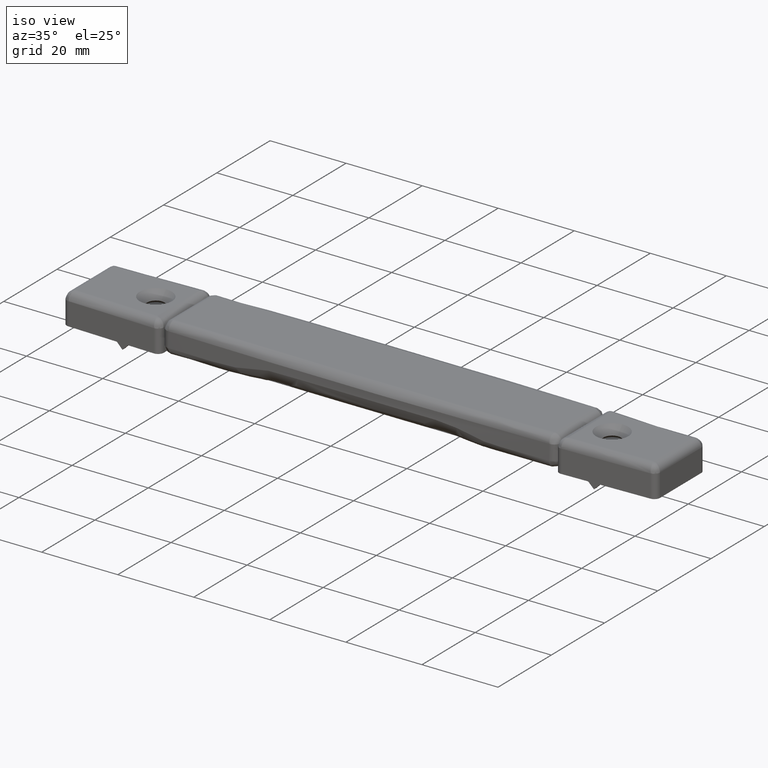
[diagram: clean part render]
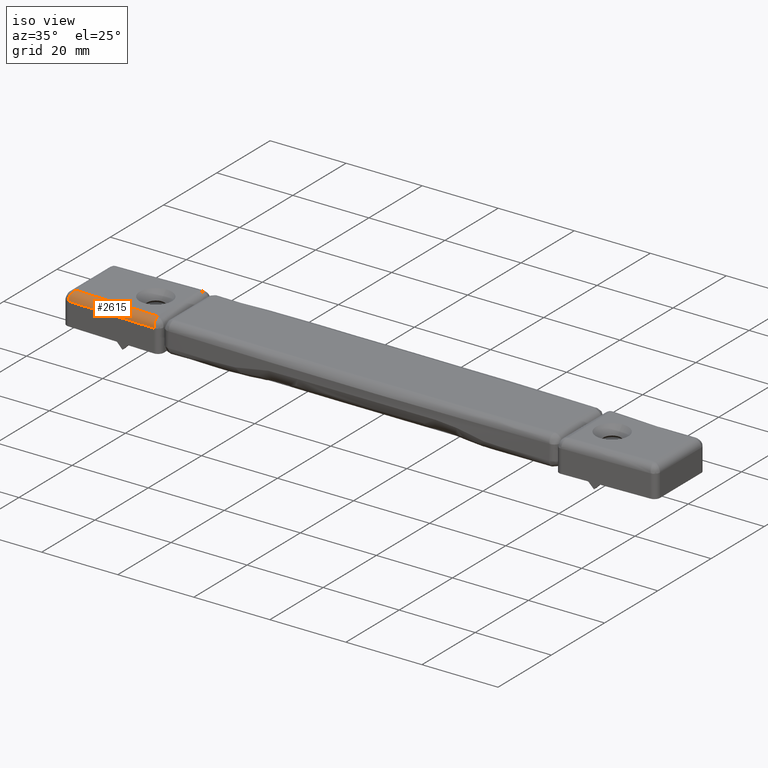
[diagram: same view with one face highlighted and labeled with its STEP entity id]
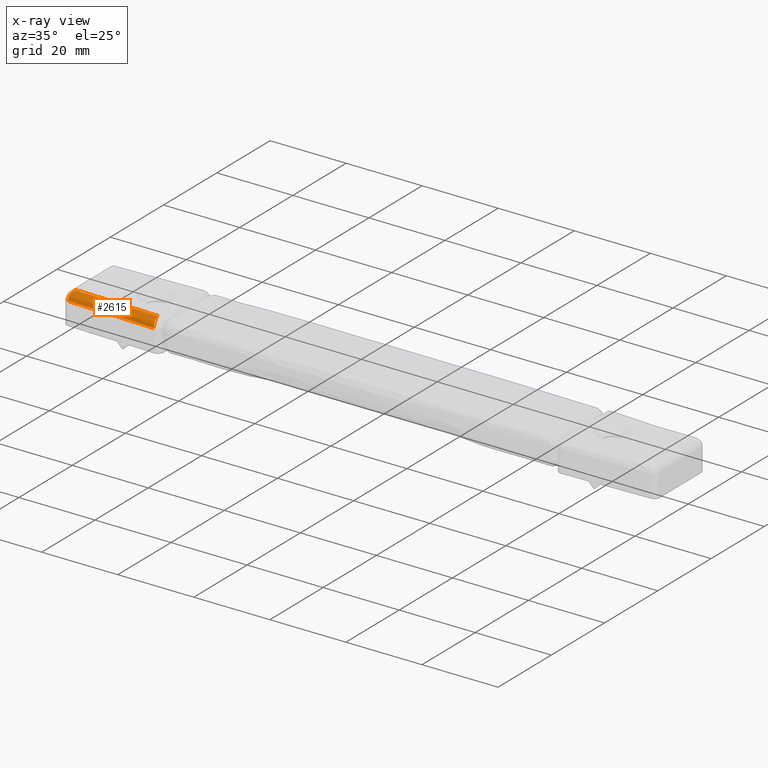
[diagram: x-ray of the same camera — body ghosted, the highlighted face saturated]
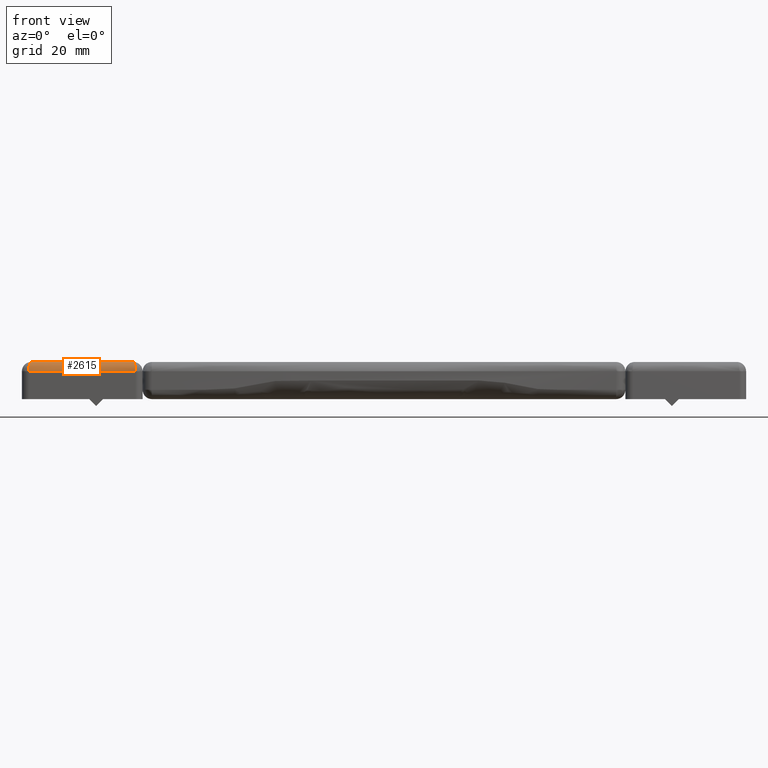
[diagram: same view with one face highlighted and labeled with its STEP entity id]
A machine part, iso view. The second image highlights one B-rep face of the part: STEP entity #2615.
The next image is the same camera in x-ray: the body ghosted, the highlighted face saturated — about 0% of this face is hidden behind the body in this view.
A second angle (front view) of the same face is appended — the face is thin or edge-on in the first view.
In plain terms, the highlighted face is a freeform B-spline surface patch.
Its self-contained STEP definition (entity closure, byte-faithful):
#954=CARTESIAN_POINT('',(-76.0,-7.260890742323780,8.0));
#955=VERTEX_POINT('',#954);
#961=CARTESIAN_POINT('',(-54.0,-7.938108133628219,8.0));
#962=VERTEX_POINT('',#961);
#963=CARTESIAN_POINT('',(-76.0,-7.260890742323780,8.0));
#964=CARTESIAN_POINT('',(-54.0,-7.938108133628219,8.0));
#965=QUASI_UNIFORM_CURVE('',1,(#963,#964),.UNSPECIFIED.,.F.,.U.);
#966=EDGE_CURVE('',#955,#962,#965,.T.);
#2181=CARTESIAN_POINT('',(-76.546152052094115,-9.245026102048490,6.0));
#2182=VERTEX_POINT('',#2181);
#2183=CARTESIAN_POINT('',(-76.0,-7.260890742323780,8.0));
#2184=CARTESIAN_POINT('',(-76.546152052094058,-9.245026102048486,8.0));
#2185=CARTESIAN_POINT('',(-76.546152052094058,-9.245026102048486,6.0));
#2193=(BOUNDED_CURVE()B_SPLINE_CURVE(2,(#2183,#2184,#2185),.UNSPECIFIED.,.F.,.U.)CURVE()GEOMETRIC_REPRESENTATION_ITEM()QUASI_UNIFORM_CURVE()RATIONAL_B_SPLINE_CURVE((1.0,0.707106781186547,1.0))REPRESENTATION_ITEM(''));
#2194=EDGE_CURVE('',#955,#2182,#2193,.T.);
#2373=CARTESIAN_POINT('',(-53.546152052094101,-9.953026102048590,6.0));
#2374=VERTEX_POINT('',#2373);
#2399=CARTESIAN_POINT('',(-53.546152052094058,-9.953026102048582,6.0));
#2400=CARTESIAN_POINT('',(-53.546152052094058,-9.953026102048584,8.000000000000002));
#2401=CARTESIAN_POINT('',(-54.0,-7.938108133628219,8.0));
#2409=(BOUNDED_CURVE()B_SPLINE_CURVE(2,(#2399,#2400,#2401),.UNSPECIFIED.,.F.,.U.)CURVE()GEOMETRIC_REPRESENTATION_ITEM()QUASI_UNIFORM_CURVE()RATIONAL_B_SPLINE_CURVE((1.0,0.707106781186548,1.0))REPRESENTATION_ITEM(''));
#2410=EDGE_CURVE('',#2374,#962,#2409,.T.);
#2591=CARTESIAN_POINT('',(-77.121130965220019,-9.226641076477243,5.947646103384251));
#2592=CARTESIAN_POINT('',(-52.956755965219990,-9.970483576477346,5.947646103384251));
#2593=CARTESIAN_POINT('',(-77.122888873883340,-9.283748278817301,8.129515177188234));
#2594=CARTESIAN_POINT('',(-52.958513873883327,-10.027590778817403,8.129515177188235));
#2595=CARTESIAN_POINT('',(-77.055859295466206,-7.106233725717805,7.996269596843733));
#2596=CARTESIAN_POINT('',(-52.891484295466171,-7.850076225717905,7.996269596843733));
#2604=(BOUNDED_SURFACE()B_SPLINE_SURFACE(1,2,((#2591,#2593,#2595),(#2592,#2594,#2596)),.UNSPECIFIED.,.F.,.F.,.U.)B_SPLINE_SURFACE_WITH_KNOTS((2,2),(3,3),(0.0,24.175820995478791),(0.0,3.520084247134665),.UNSPECIFIED.)GEOMETRIC_REPRESENTATION_ITEM()RATIONAL_B_SPLINE_SURFACE(((1.0,0.675590207615660,1.0),(1.0,0.675590207615660,1.0)))REPRESENTATION_ITEM('')SURFACE());
#2605=CARTESIAN_POINT('',(-53.546152052094101,-9.953026102048590,6.0));
#2606=CARTESIAN_POINT('',(-76.546152052094115,-9.245026102048490,6.0));
#2607=QUASI_UNIFORM_CURVE('',1,(#2605,#2606),.UNSPECIFIED.,.F.,.U.);
#2608=EDGE_CURVE('',#2374,#2182,#2607,.T.);
#2609=ORIENTED_EDGE('',*,*,#2608,.F.);
#2610=ORIENTED_EDGE('',*,*,#2410,.T.);
#2611=ORIENTED_EDGE('',*,*,#966,.F.);
#2612=ORIENTED_EDGE('',*,*,#2194,.T.);
#2613=EDGE_LOOP('',(#2609,#2610,#2611,#2612));
#2614=FACE_OUTER_BOUND('',#2613,.T.);
#2615=ADVANCED_FACE('',(#2614),#2604,.T.);